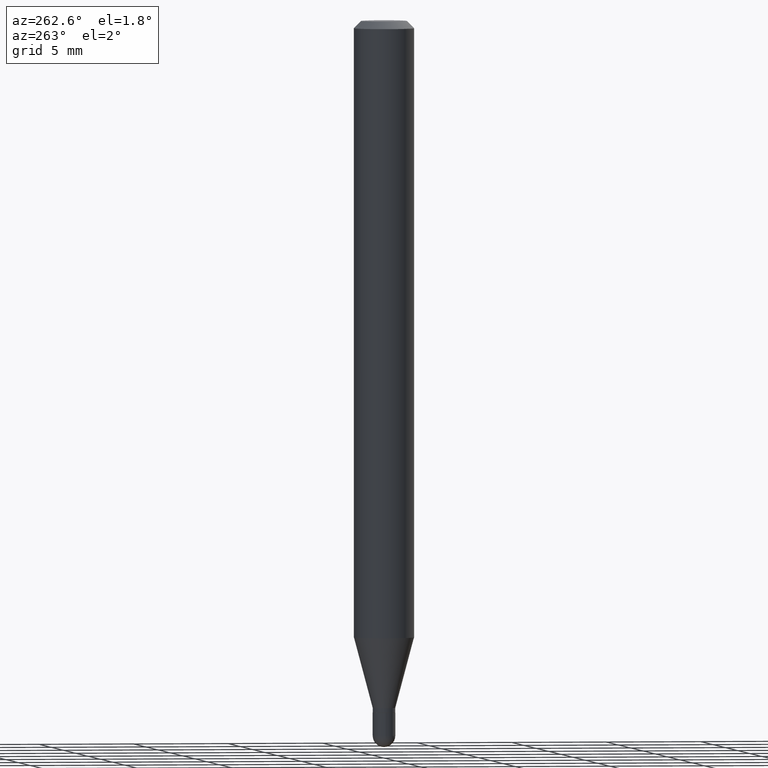
[diagram: clean part render]
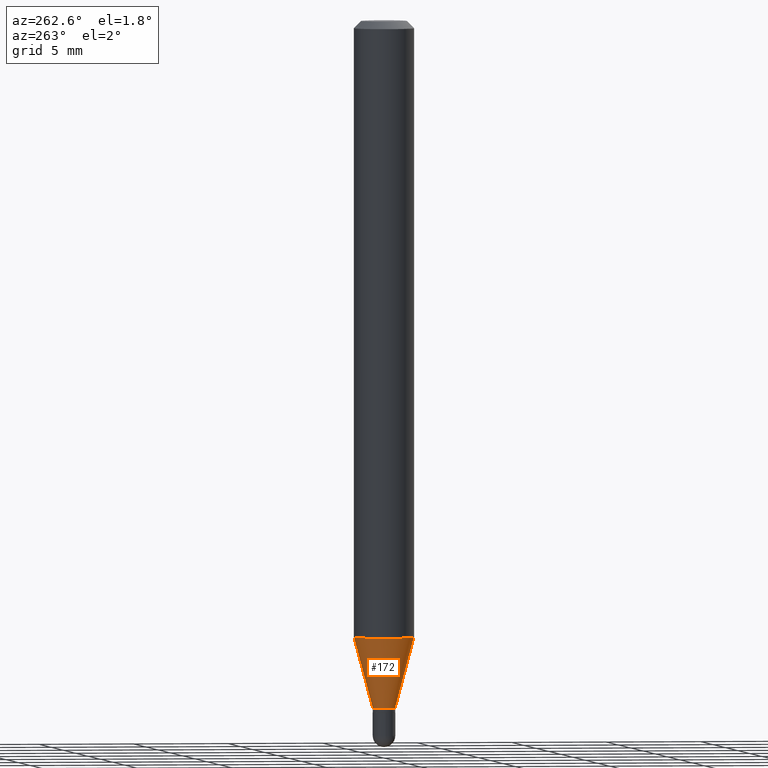
[diagram: same view with one face highlighted and labeled with its STEP entity id]
A machine part, auxiliary view. The second image highlights one B-rep face of the part: STEP entity #172.
In plain terms, the highlighted conical surface has half-angle 15 deg.
Its self-contained STEP definition (entity closure, byte-faithful):
#5 = LINE ( 'NONE', #370, #29 ) ;
#23 = ORIENTED_EDGE ( 'NONE', *, *, #301, .F. ) ;
#29 = VECTOR ( 'NONE', #366, 39.37007874015748143 ) ;
#50 = DIRECTION ( 'NONE',  ( -2.445463933789263379E-29, 3.491488316391355561E-15, 1.000000000000000000 ) ) ;
#114 = AXIS2_PLACEMENT_3D ( 'NONE', #135, #50, #249 ) ;
#116 = VECTOR ( 'NONE', #287, 39.37007874015748143 ) ;
#122 = AXIS2_PLACEMENT_3D ( 'NONE', #229, #492, #136 ) ;
#130 = DIRECTION ( 'NONE',  ( -2.445463933789263379E-29, 3.491488316391355561E-15, 1.000000000000000000 ) ) ;
#131 = CARTESIAN_POINT ( 'NONE',  ( 4.440892098500934804E-16, 0.06249999999999553135, -1.273450018504814762 ) ) ;
#134 = CARTESIAN_POINT ( 'NONE',  ( 1.669775429036576870E-16, 0.02349999999999496936, -1.419000000000000261 ) ) ;
#135 = CARTESIAN_POINT ( 'NONE',  ( 3.470113322046965911E-29, -4.954421920959333944E-15, -1.419000000000000261 ) ) ;
#136 = DIRECTION ( 'NONE',  ( -6.982962677686266711E-15, -1.000000000000000000, 0.000000000000000000 ) ) ;
#139 = CONICAL_SURFACE ( 'NONE', #114, 0.02349999999999992373, 0.2617993877991502960 ) ;
#141 = CIRCLE ( 'NONE', #396, 0.06250000000000000000 ) ;
#148 = ORIENTED_EDGE ( 'NONE', *, *, #252, .T. ) ;
#165 = FACE_OUTER_BOUND ( 'NONE', #350, .T. ) ;
#168 = LINE ( 'NONE', #134, #116 ) ;
#172 = ADVANCED_FACE ( 'NONE', ( #165 ), #139, .T. ) ;
#187 = CARTESIAN_POINT ( 'NONE',  ( -4.364351673553606573E-16, -0.06250000000000446865, -1.273450018504814096 ) ) ;
#210 = CARTESIAN_POINT ( 'NONE',  ( 3.114176091736793656E-29, -4.446235861117914708E-15, -1.273450018504814318 ) ) ;
#229 = CARTESIAN_POINT ( 'NONE',  ( 3.470113322046965911E-29, -4.954421920959333944E-15, -1.419000000000000261 ) ) ;
#249 = DIRECTION ( 'NONE',  ( -6.982962677686266711E-15, -1.000000000000000000, 0.000000000000000000 ) ) ;
#252 = EDGE_CURVE ( 'NONE', #266, #389, #5, .T. ) ;
#266 = VERTEX_POINT ( 'NONE', #411 ) ;
#287 = DIRECTION ( 'NONE',  ( 1.839019923739601104E-15, 0.2588190451025250693, 0.9659258262890670910 ) ) ;
#301 = EDGE_CURVE ( 'NONE', #353, #389, #141, .T. ) ;
#303 = ORIENTED_EDGE ( 'NONE', *, *, #449, .T. ) ;
#350 = EDGE_LOOP ( 'NONE', ( #451, #303, #148, #23 ) ) ;
#353 = VERTEX_POINT ( 'NONE', #131 ) ;
#363 = EDGE_CURVE ( 'NONE', #457, #353, #168, .T. ) ;
#366 = DIRECTION ( 'NONE',  ( -1.807323732225330928E-15, -0.2588190451025182970, 0.9659258262890689783 ) ) ;
#370 = CARTESIAN_POINT ( 'NONE',  ( -1.640996229255920244E-16, -0.02350000000000488157, -1.419000000000000261 ) ) ;
#373 = CIRCLE ( 'NONE', #122, 0.02349999999999992373 ) ;
#389 = VERTEX_POINT ( 'NONE', #187 ) ;
#396 = AXIS2_PLACEMENT_3D ( 'NONE', #210, #130, #487 ) ;
#399 = CARTESIAN_POINT ( 'NONE',  ( 3.055333763768757932E-16, 0.02349999999999496589, -1.419000000000000261 ) ) ;
#411 = CARTESIAN_POINT ( 'NONE',  ( -1.640996229255920244E-16, -0.02350000000000488157, -1.419000000000000261 ) ) ;
#449 = EDGE_CURVE ( 'NONE', #457, #266, #373, .T. ) ;
#451 = ORIENTED_EDGE ( 'NONE', *, *, #363, .F. ) ;
#457 = VERTEX_POINT ( 'NONE', #399 ) ;
#487 = DIRECTION ( 'NONE',  ( -6.982962677686265922E-15, -1.000000000000000000, 4.370956789862821150E-15 ) ) ;
#492 = DIRECTION ( 'NONE',  ( -2.445463933789263379E-29, 3.491488316391355561E-15, 1.000000000000000000 ) ) ;